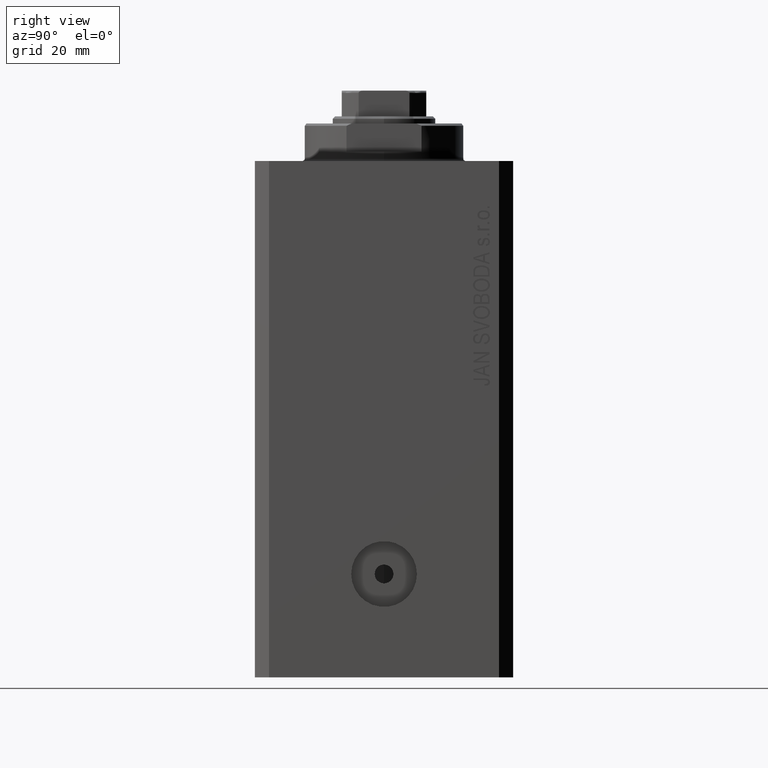
[diagram: clean part render]
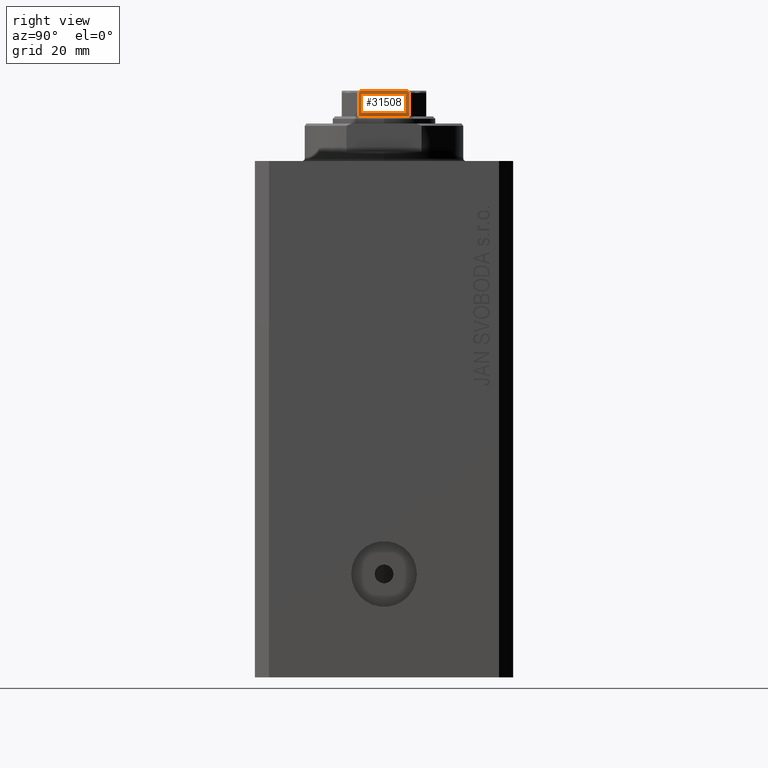
[diagram: same view with one face highlighted and labeled with its STEP entity id]
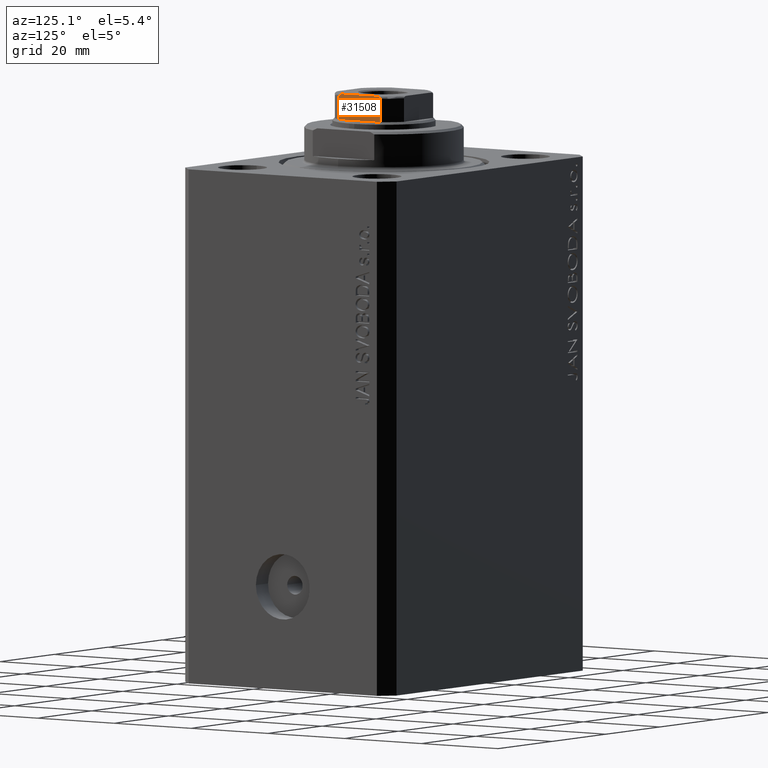
[diagram: same view with one face highlighted and labeled with its STEP entity id]
A machine part, right view. The second image highlights one B-rep face of the part: STEP entity #31508.
A second angle (auxiliary view) of the same face is appended — the face is thin or edge-on in the first view.
In plain terms, the highlighted planar face has unit normal (-1, -0, 0).
Its self-contained STEP definition (entity closure, byte-faithful):
#76 = ORIENTED_EDGE ( 'NONE', *, *, #28595, .T. ) ;
#288 = ORIENTED_EDGE ( 'NONE', *, *, #4013, .F. ) ;
#1126 = EDGE_CURVE ( 'NONE', #2247, #29548, #25112, .T. ) ;
#2247 = VERTEX_POINT ( 'NONE', #7267 ) ;
#4013 = EDGE_CURVE ( 'NONE', #14304, #22122, #41688, .T. ) ;
#4475 = DIRECTION ( 'NONE',  ( 9.637352644315595243E-17, -1.000000000000000000, 0.000000000000000000 ) ) ;
#4994 = CARTESIAN_POINT ( 'NONE',  ( 9.000000000000001776, 5.174818616237107705, 114.9325218846533829 ) ) ;
#5787 = CARTESIAN_POINT ( 'NONE',  ( 9.000000000000000000, 4.358898943540675752, 115.1000000000000085 ) ) ;
#6964 = FACE_OUTER_BOUND ( 'NONE', #42369, .T. ) ;
#7267 = CARTESIAN_POINT ( 'NONE',  ( 8.999999999999996447, -5.408326913195990571, 109.5999999999999943 ) ) ;
#7761 = DIRECTION ( 'NONE',  ( -0.000000000000000000, -0.000000000000000000, 1.000000000000000000 ) ) ;
#8068 = CARTESIAN_POINT ( 'NONE',  ( 9.000000000000000000, -5.390945448132527851, 114.7054816538970385 ) ) ;
#8802 = CARTESIAN_POINT ( 'NONE',  ( 9.000000000000000000, 5.408326913195988794, 114.6535720727335530 ) ) ;
#9028 = CARTESIAN_POINT ( 'NONE',  ( 9.000000000000000000, 5.077896145217221324, 114.9773016776067038 ) ) ;
#9597 = CARTESIAN_POINT ( 'NONE',  ( 9.000000000000000000, 5.408326913195986130, 109.5999999999999659 ) ) ;
#9675 = VERTEX_POINT ( 'NONE', #28738 ) ;
#10117 = DIRECTION ( 'NONE',  ( -0.000000000000000000, -0.000000000000000000, 1.000000000000000000 ) ) ;
#10338 = CARTESIAN_POINT ( 'NONE',  ( 9.000000000000001776, -4.358898943540675752, 115.1000000000000085 ) ) ;
#11005 = CARTESIAN_POINT ( 'NONE',  ( 8.999999999999996447, -5.408326913195990571, 114.5999999999999801 ) ) ;
#11228 = DIRECTION ( 'NONE',  ( -1.000000000000000000, -9.637352644315595243E-17, 0.000000000000000000 ) ) ;
#11667 = CARTESIAN_POINT ( 'NONE',  ( 9.000000000000000000, -4.569272810556667785, 115.0999999999999943 ) ) ;
#13638 = VECTOR ( 'NONE', #7761, 1000.000000000000000 ) ;
#14054 = CARTESIAN_POINT ( 'NONE',  ( 9.000000000000000000, 8.999999999999998224, 109.6000000000000085 ) ) ;
#14150 = CARTESIAN_POINT ( 'NONE',  ( 8.999999999999996447, -5.408326913195990571, 114.5999999999999801 ) ) ;
#14304 = VERTEX_POINT ( 'NONE', #20372 ) ;
#14387 = CARTESIAN_POINT ( 'NONE',  ( 9.000000000000003553, -5.173732970196586400, 114.9331808643798780 ) ) ;
#14409 = CARTESIAN_POINT ( 'NONE',  ( 9.000000000000000000, 8.999999999999998224, 115.1000000000000085 ) ) ;
#14547 = VECTOR ( 'NONE', #17131, 1000.000000000000000 ) ;
#16111 = ORIENTED_EDGE ( 'NONE', *, *, #35521, .T. ) ;
#16658 = LINE ( 'NONE', #37609, #23157 ) ;
#17131 = DIRECTION ( 'NONE',  ( -9.637352644315595243E-17, 1.000000000000000000, -0.000000000000000000 ) ) ;
#17341 = B_SPLINE_CURVE_WITH_KNOTS ( 'NONE', 3,
 ( #10338, #11667, #35996, #28589, #14387, #38941, #24981, #8068, #38721, #11005 ),
 .UNSPECIFIED., .F., .F.,
 ( 4, 2, 2, 2, 4 ),
 ( 8.673617379884035472E-19, 0.0006221106941441158222, 0.0009331660412161743839, 0.001088693714752203773, 0.001244221388288233162 ),
 .UNSPECIFIED. ) ;
#17862 = ORIENTED_EDGE ( 'NONE', *, *, #1126, .F. ) ;
#18606 = EDGE_CURVE ( 'NONE', #14304, #29548, #17341, .T. ) ;
#19149 = EDGE_CURVE ( 'NONE', #2247, #32882, #20392, .T. ) ;
#20372 = CARTESIAN_POINT ( 'NONE',  ( 9.000000000000001776, -4.358898943540675752, 115.1000000000000085 ) ) ;
#20392 = LINE ( 'NONE', #14054, #43605 ) ;
#22122 = VERTEX_POINT ( 'NONE', #5787 ) ;
#22563 = CARTESIAN_POINT ( 'NONE',  ( 9.000000000000000000, 5.390954572107315990, 114.7053628521400270 ) ) ;
#22785 = CARTESIAN_POINT ( 'NONE',  ( 9.000000000000001776, 4.778533838065908590, 115.0778291476469946 ) ) ;
#23157 = VECTOR ( 'NONE', #10117, 1000.000000000000000 ) ;
#24103 = CARTESIAN_POINT ( 'NONE',  ( 9.000000000000000000, 8.999999999999998224, 115.1000000000000085 ) ) ;
#24981 = CARTESIAN_POINT ( 'NONE',  ( 9.000000000000001776, -5.335288102212760286, 114.7956905402762118 ) ) ;
#25112 = LINE ( 'NONE', #42250, #13638 ) ;
#28589 = CARTESIAN_POINT ( 'NONE',  ( 9.000000000000001776, -5.074490744525492758, 114.9787200784332413 ) ) ;
#28595 = EDGE_CURVE ( 'NONE', #9675, #22122, #44126, .T. ) ;
#28738 = CARTESIAN_POINT ( 'NONE',  ( 9.000000000000000000, 5.408326913195986130, 114.5999999999999801 ) ) ;
#28885 = CARTESIAN_POINT ( 'NONE',  ( 9.000000000000001776, 4.569278586016980448, 115.1000000000000369 ) ) ;
#29548 = VERTEX_POINT ( 'NONE', #14150 ) ;
#31508 = ADVANCED_FACE ( 'NONE', ( #6964 ), #42115, .F. ) ;
#32272 = CARTESIAN_POINT ( 'NONE',  ( 9.000000000000000000, 5.335664150027712438, 114.7951843380013059 ) ) ;
#32882 = VERTEX_POINT ( 'NONE', #9597 ) ;
#35455 = AXIS2_PLACEMENT_3D ( 'NONE', #24103, #11228, #4475 ) ;
#35521 = EDGE_CURVE ( 'NONE', #32882, #9675, #16658, .T. ) ;
#35854 = CARTESIAN_POINT ( 'NONE',  ( 9.000000000000000000, 5.298186678102073444, 114.8338781215005042 ) ) ;
#35996 = CARTESIAN_POINT ( 'NONE',  ( 9.000000000000001776, -4.775913644518307244, 115.0781460743083500 ) ) ;
#36520 = CARTESIAN_POINT ( 'NONE',  ( 9.000000000000000000, 4.358898943540675752, 115.1000000000000085 ) ) ;
#37609 = CARTESIAN_POINT ( 'NONE',  ( 9.000000000000000000, 5.408326913195986130, -0.001000000000001000089 ) ) ;
#38721 = CARTESIAN_POINT ( 'NONE',  ( 9.000000000000003553, -5.408326913195983465, 114.6537434673188471 ) ) ;
#38885 = ORIENTED_EDGE ( 'NONE', *, *, #19149, .T. ) ;
#38941 = CARTESIAN_POINT ( 'NONE',  ( 9.000000000000003553, -5.297634495023411993, 114.8344228052780238 ) ) ;
#39238 = CARTESIAN_POINT ( 'NONE',  ( 9.000000000000000000, 5.408326913195986130, 114.5999999999999801 ) ) ;
#40437 = ORIENTED_EDGE ( 'NONE', *, *, #18606, .T. ) ;
#41688 = LINE ( 'NONE', #14409, #14547 ) ;
#42115 = PLANE ( 'NONE',  #35455 ) ;
#42250 = CARTESIAN_POINT ( 'NONE',  ( 8.999999999999996447, -5.408326913195990571, -0.001000000000001000089 ) ) ;
#42369 = EDGE_LOOP ( 'NONE', ( #288, #40437, #17862, #38885, #16111, #76 ) ) ;
#43605 = VECTOR ( 'NONE', #44509, 1000.000000000000000 ) ;
#44126 = B_SPLINE_CURVE_WITH_KNOTS ( 'NONE', 3,
 ( #39238, #8802, #22563, #32272, #35854, #4994, #9028, #22785, #28885, #36520 ),
 .UNSPECIFIED., .F., .F.,
 ( 4, 2, 2, 2, 4 ),
 ( 2.823925224926892107E-17, 0.0001582447020888309592, 0.0003164894041776336749, 0.0006329788083552650730, 0.001265957616710514533 ),
 .UNSPECIFIED. ) ;
#44509 = DIRECTION ( 'NONE',  ( -9.637352644315595243E-17, 1.000000000000000000, -0.000000000000000000 ) ) ;